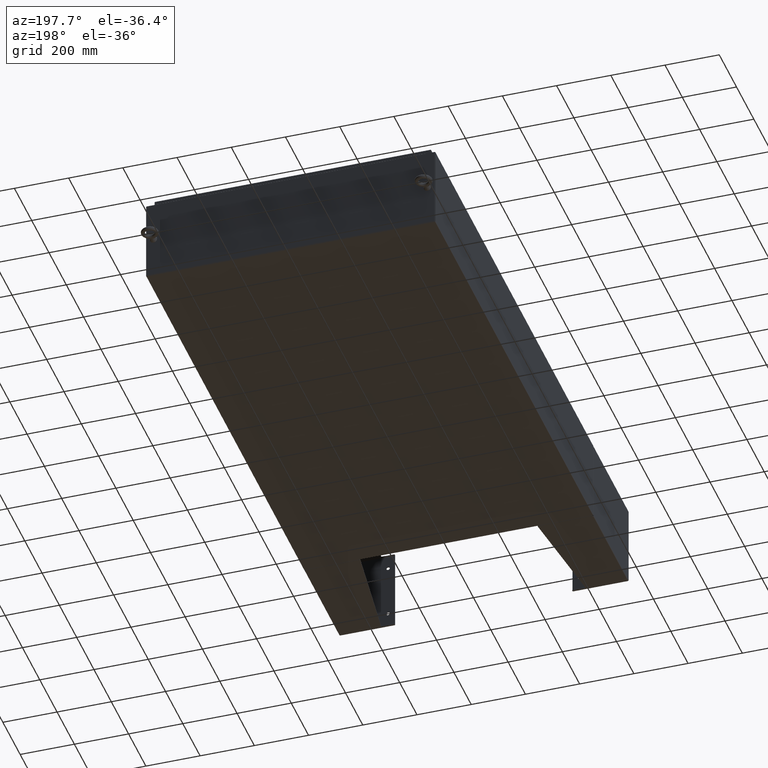
[diagram: clean part render]
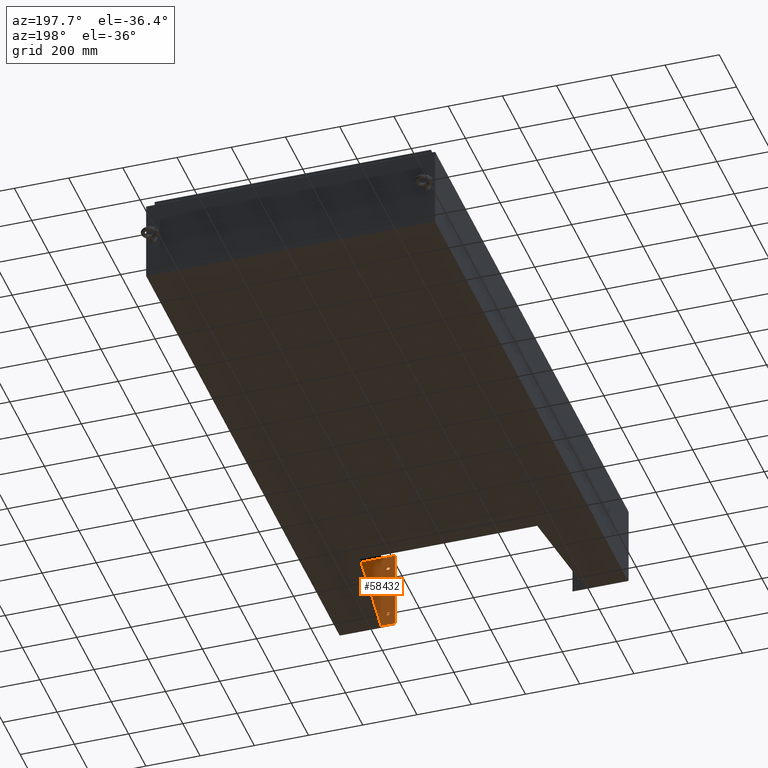
[diagram: same view with one face highlighted and labeled with its STEP entity id]
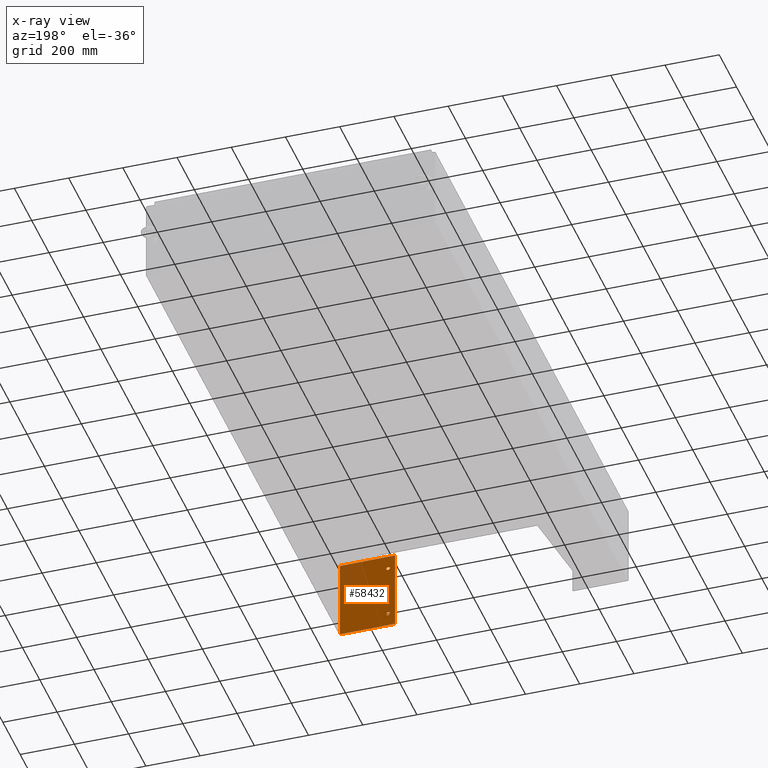
[diagram: x-ray of the same camera — body ghosted, the highlighted face saturated]
A machine part, auxiliary view. The second image highlights one B-rep face of the part: STEP entity #58432.
The next image is the same camera in x-ray: the body ghosted, the highlighted face saturated — about 26% of this face is hidden behind the body in this view.
In plain terms, the highlighted planar face has unit normal (0, -1, 0).
Its self-contained STEP definition (entity closure, byte-faithful):
#5 = EDGE_LOOP ( 'NONE', ( #22325, #3909 ) ) ;
#1359 = DIRECTION ( 'NONE',  ( -1.000000000000000000, 0.0000000000000000000, 0.0000000000000000000 ) ) ;
#1856 = CIRCLE ( 'NONE', #7898, 0.2500000000000000000 ) ;
#2504 = DIRECTION ( 'NONE',  ( 0.0000000000000000000, 0.0000000000000000000, 1.000000000000000000 ) ) ;
#2945 = AXIS2_PLACEMENT_3D ( 'NONE', #67152, #34276, #1359 ) ;
#3070 = CIRCLE ( 'NONE', #2945, 0.2499999999999998100 ) ;
#3909 = ORIENTED_EDGE ( 'NONE', *, *, #61041, .F. ) ;
#5225 = ORIENTED_EDGE ( 'NONE', *, *, #57898, .F. ) ;
#5380 = ORIENTED_EDGE ( 'NONE', *, *, #61264, .T. ) ;
#5980 = CARTESIAN_POINT ( 'NONE',  ( -0.2500000000000000000, 3.061616997868383000E-017, 0.0000000000000000000 ) ) ;
#7898 = AXIS2_PLACEMENT_3D ( 'NONE', #50289, #17574, #55868 ) ;
#8035 = CARTESIAN_POINT ( 'NONE',  ( -5.879000000000000400, 4.000000000000000000, 0.0000000000000000000 ) ) ;
#9093 = PLANE ( 'NONE',  #32597 ) ;
#9869 = CARTESIAN_POINT ( 'NONE',  ( -3.879000000000000400, -2.999999999999999600, 0.0000000000000000000 ) ) ;
#11282 = CARTESIAN_POINT ( 'NONE',  ( 5.878999999999997800, -4.000000000000000000, 0.0000000000000000000 ) ) ;
#12124 = DIRECTION ( 'NONE',  ( -1.000000000000000000, -0.0000000000000000000, -0.0000000000000000000 ) ) ;
#12653 = VECTOR ( 'NONE', #12124, 39.37007874015748100 ) ;
#14293 = FACE_BOUND ( 'NONE', #15960, .T. ) ;
#15446 = EDGE_CURVE ( 'NONE', #19546, #52658, #33024, .T. ) ;
#15467 = DIRECTION ( 'NONE',  ( 1.000000000000000000, 0.0000000000000000000, 0.0000000000000000000 ) ) ;
#15488 = AXIS2_PLACEMENT_3D ( 'NONE', #21599, #65604, #46820 ) ;
#15625 = LINE ( 'NONE', #35801, #70560 ) ;
#15960 = EDGE_LOOP ( 'NONE', ( #5225, #63278 ) ) ;
#16653 = DIRECTION ( 'NONE',  ( -0.0000000000000000000, -0.0000000000000000000, -1.000000000000000000 ) ) ;
#16706 = CIRCLE ( 'NONE', #53994, 0.2499999999999998100 ) ;
#16783 = VERTEX_POINT ( 'NONE', #56832 ) ;
#17574 = DIRECTION ( 'NONE',  ( 0.0000000000000000000, 0.0000000000000000000, 1.000000000000000000 ) ) ;
#17840 = CARTESIAN_POINT ( 'NONE',  ( -5.879000000000000400, -4.000000000000000000, 0.0000000000000000000 ) ) ;
#18015 = VERTEX_POINT ( 'NONE', #20512 ) ;
#19065 = EDGE_CURVE ( 'NONE', #44262, #53207, #43523, .T. ) ;
#19546 = VERTEX_POINT ( 'NONE', #69829 ) ;
#19873 = VERTEX_POINT ( 'NONE', #42637 ) ;
#20078 = CARTESIAN_POINT ( 'NONE',  ( 5.878999999999997800, 4.000000000000000000, 0.0000000000000000000 ) ) ;
#20512 = CARTESIAN_POINT ( 'NONE',  ( 0.2500000000000000000, 0.0000000000000000000, 0.0000000000000000000 ) ) ;
#20619 = ORIENTED_EDGE ( 'NONE', *, *, #19065, .T. ) ;
#21599 = CARTESIAN_POINT ( 'NONE',  ( -3.879000000000000400, -2.999999999999999600, 0.0000000000000000000 ) ) ;
#22325 = ORIENTED_EDGE ( 'NONE', *, *, #37473, .F. ) ;
#22605 = CARTESIAN_POINT ( 'NONE',  ( -5.879000000000000400, -4.000000000000000000, 0.0000000000000000000 ) ) ;
#25842 = ORIENTED_EDGE ( 'NONE', *, *, #71134, .T. ) ;
#27259 = EDGE_LOOP ( 'NONE', ( #64230, #27389 ) ) ;
#27337 = AXIS2_PLACEMENT_3D ( 'NONE', #35458, #2504, #40972 ) ;
#27389 = ORIENTED_EDGE ( 'NONE', *, *, #55007, .T. ) ;
#27465 = LINE ( 'NONE', #17840, #55011 ) ;
#28621 = ORIENTED_EDGE ( 'NONE', *, *, #39752, .T. ) ;
#31108 = DIRECTION ( 'NONE',  ( -1.000000000000000000, 0.0000000000000000000, -0.0000000000000000000 ) ) ;
#31220 = CIRCLE ( 'NONE', #27337, 0.2500000000000000000 ) ;
#32597 = AXIS2_PLACEMENT_3D ( 'NONE', #20078, #64026, #31108 ) ;
#33024 = CIRCLE ( 'NONE', #15488, 0.2499999999999998100 ) ;
#34276 = DIRECTION ( 'NONE',  ( -0.0000000000000000000, -0.0000000000000000000, -1.000000000000000000 ) ) ;
#35389 = AXIS2_PLACEMENT_3D ( 'NONE', #9869, #48194, #15467 ) ;
#35458 = CARTESIAN_POINT ( 'NONE',  ( 0.0000000000000000000, 0.0000000000000000000, 0.0000000000000000000 ) ) ;
#35801 = CARTESIAN_POINT ( 'NONE',  ( 5.878999999999997800, -4.000000000000000000, 0.0000000000000000000 ) ) ;
#37473 = EDGE_CURVE ( 'NONE', #18015, #68782, #31220, .T. ) ;
#37479 = CARTESIAN_POINT ( 'NONE',  ( -3.629000000000000400, -2.999999999999999600, 0.0000000000000000000 ) ) ;
#39752 = EDGE_CURVE ( 'NONE', #53207, #69916, #27465, .T. ) ;
#40972 = DIRECTION ( 'NONE',  ( 1.000000000000000000, 0.0000000000000000000, 0.0000000000000000000 ) ) ;
#42637 = CARTESIAN_POINT ( 'NONE',  ( 3.629000000000000400, -2.999999999999999600, 0.0000000000000000000 ) ) ;
#43374 = LINE ( 'NONE', #22605, #59623 ) ;
#43448 = FACE_BOUND ( 'NONE', #5, .T. ) ;
#43523 = LINE ( 'NONE', #8035, #12653 ) ;
#44262 = VERTEX_POINT ( 'NONE', #44468 ) ;
#44468 = CARTESIAN_POINT ( 'NONE',  ( 5.878999999999997800, 4.000000000000000000, 0.0000000000000000000 ) ) ;
#46820 = DIRECTION ( 'NONE',  ( 1.000000000000000000, 0.0000000000000000000, 0.0000000000000000000 ) ) ;
#48194 = DIRECTION ( 'NONE',  ( 0.0000000000000000000, 0.0000000000000000000, 1.000000000000000000 ) ) ;
#48890 = CARTESIAN_POINT ( 'NONE',  ( -5.879000000000000400, -4.000000000000000000, 0.0000000000000000000 ) ) ;
#49364 = CARTESIAN_POINT ( 'NONE',  ( 3.879000000000000400, -2.999999999999999600, 0.0000000000000000000 ) ) ;
#50289 = CARTESIAN_POINT ( 'NONE',  ( 0.0000000000000000000, 0.0000000000000000000, 0.0000000000000000000 ) ) ;
#52658 = VERTEX_POINT ( 'NONE', #37479 ) ;
#53207 = VERTEX_POINT ( 'NONE', #71176 ) ;
#53922 = EDGE_CURVE ( 'NONE', #16783, #19873, #3070, .T. ) ;
#53994 = AXIS2_PLACEMENT_3D ( 'NONE', #49364, #16653, #54948 ) ;
#54948 = DIRECTION ( 'NONE',  ( -1.000000000000000000, 0.0000000000000000000, 0.0000000000000000000 ) ) ;
#55007 = EDGE_CURVE ( 'NONE', #19873, #16783, #16706, .T. ) ;
#55011 = VECTOR ( 'NONE', #61654, 39.37007874015748100 ) ;
#55487 = VERTEX_POINT ( 'NONE', #11282 ) ;
#55523 = DIRECTION ( 'NONE',  ( 1.000000000000000000, 0.0000000000000000000, 0.0000000000000000000 ) ) ;
#55868 = DIRECTION ( 'NONE',  ( 1.000000000000000000, 0.0000000000000000000, 0.0000000000000000000 ) ) ;
#56832 = CARTESIAN_POINT ( 'NONE',  ( 4.129000000000000400, -2.999999999999999600, 0.0000000000000000000 ) ) ;
#57898 = EDGE_CURVE ( 'NONE', #52658, #19546, #63253, .T. ) ;
#58432 = ADVANCED_FACE ( 'NONE', ( #59710, #43448, #14293, #70959 ), #9093, .F. ) ;
#59623 = VECTOR ( 'NONE', #55523, 39.37007874015748100 ) ;
#59710 = FACE_OUTER_BOUND ( 'NONE', #67993, .T. ) ;
#61041 = EDGE_CURVE ( 'NONE', #68782, #18015, #1856, .T. ) ;
#61264 = EDGE_CURVE ( 'NONE', #55487, #44262, #15625, .T. ) ;
#61654 = DIRECTION ( 'NONE',  ( -0.0000000000000000000, -1.000000000000000000, -0.0000000000000000000 ) ) ;
#62798 = DIRECTION ( 'NONE',  ( 0.0000000000000000000, 1.000000000000000000, 0.0000000000000000000 ) ) ;
#63253 = CIRCLE ( 'NONE', #35389, 0.2499999999999998100 ) ;
#63278 = ORIENTED_EDGE ( 'NONE', *, *, #15446, .F. ) ;
#64026 = DIRECTION ( 'NONE',  ( 0.0000000000000000000, 0.0000000000000000000, -1.000000000000000000 ) ) ;
#64230 = ORIENTED_EDGE ( 'NONE', *, *, #53922, .T. ) ;
#65604 = DIRECTION ( 'NONE',  ( 0.0000000000000000000, 0.0000000000000000000, 1.000000000000000000 ) ) ;
#67152 = CARTESIAN_POINT ( 'NONE',  ( 3.879000000000000400, -2.999999999999999600, 0.0000000000000000000 ) ) ;
#67993 = EDGE_LOOP ( 'NONE', ( #5380, #20619, #28621, #25842 ) ) ;
#68782 = VERTEX_POINT ( 'NONE', #5980 ) ;
#69829 = CARTESIAN_POINT ( 'NONE',  ( -4.129000000000000400, -2.999999999999999600, 0.0000000000000000000 ) ) ;
#69916 = VERTEX_POINT ( 'NONE', #48890 ) ;
#70560 = VECTOR ( 'NONE', #62798, 39.37007874015748100 ) ;
#70959 = FACE_BOUND ( 'NONE', #27259, .T. ) ;
#71134 = EDGE_CURVE ( 'NONE', #69916, #55487, #43374, .T. ) ;
#71176 = CARTESIAN_POINT ( 'NONE',  ( -5.879000000000000400, 4.000000000000000000, 0.0000000000000000000 ) ) ;